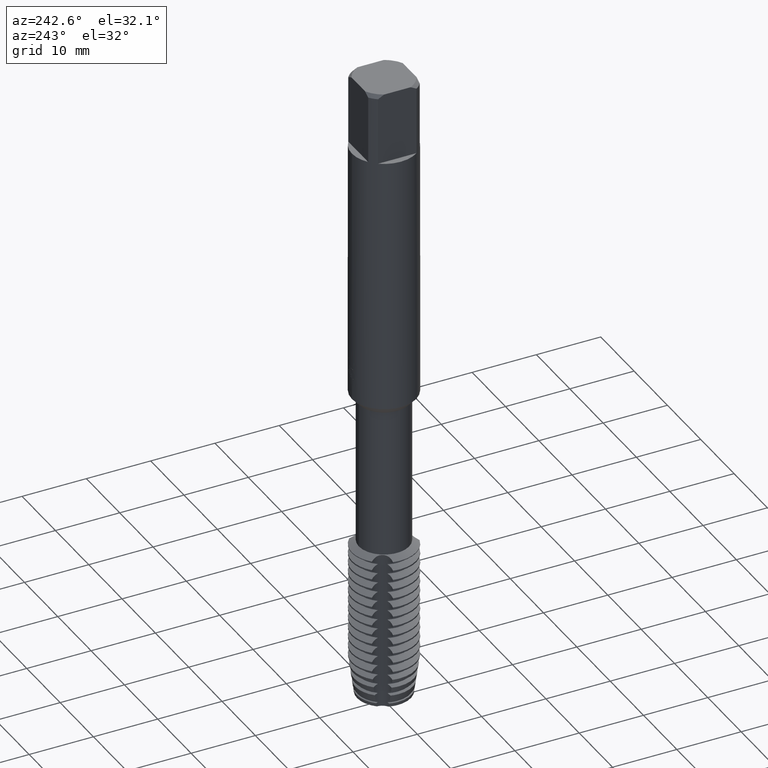
[diagram: clean part render]
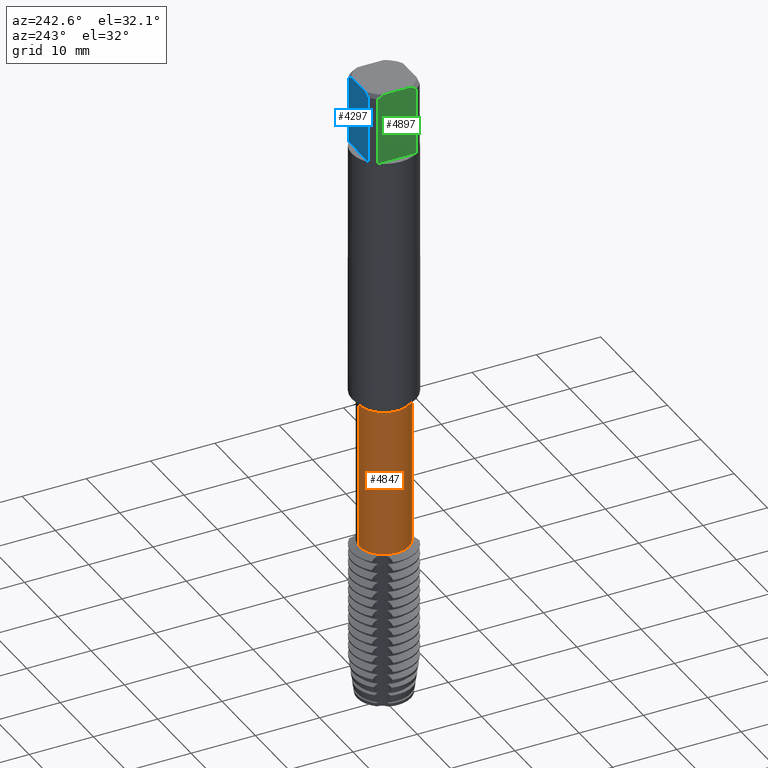
[diagram: same view with three faces highlighted in distinct colors, each labeled with its STEP entity id]
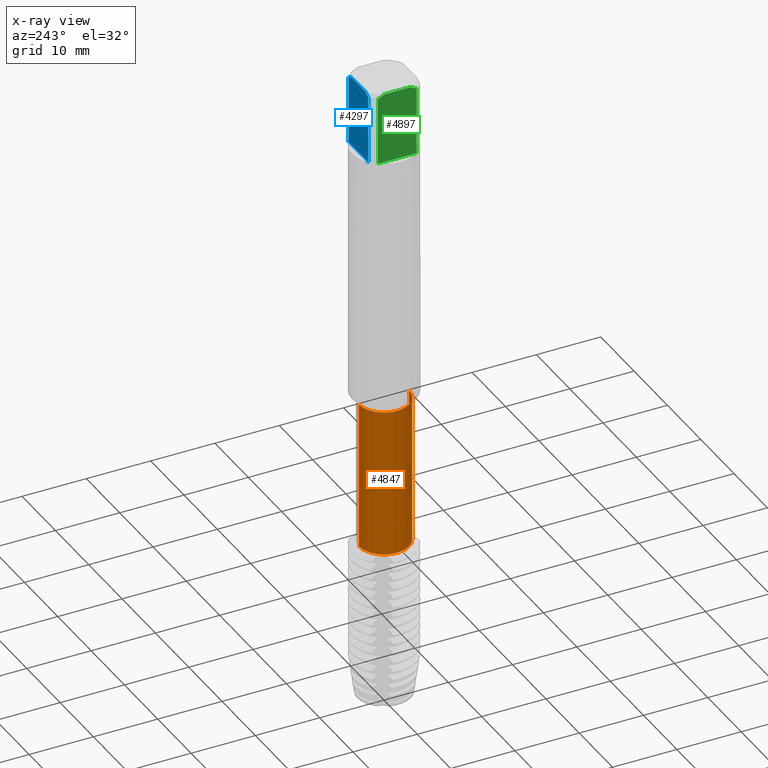
[diagram: x-ray of the same camera — body ghosted, the three highlighted faces saturated]
A machine part, auxiliary view with three faces highlighted in distinct colors.
The next image is the same camera in x-ray (body ghosted, the three faces saturated) — at least one of them is partly hidden behind the body in this view.
Their STEP definitions:

[orange] entity #4847 — the highlighted cylindrical surface (edge-blend (fillet) strip) has radius 3.9 mm, axis along (-0, -0, 1).
#2231=EDGE_CURVE('',#4285,#5823,#6323,.T.);
#2249=EDGE_CURVE('',#5247,#4629,#6342,.T.);
#2821=EDGE_CURVE('',#5823,#4629,#6973,.T.);
#4285=VERTEX_POINT('',#8551);
#4629=VERTEX_POINT('',#8923);
#4637=EDGE_CURVE('',#5247,#4285,#8931,.T.);
#4847=ADVANCED_FACE('',(#9159),#9160,.T.);
#5247=VERTEX_POINT('',#9603);
#5823=VERTEX_POINT('',#10234);
#6323=CIRCLE('',#10822,3.9);
#6342=CIRCLE('',#10847,3.9);
#6973=LINE('',#11903,#11904);
#8551=CARTESIAN_POINT('',(4.77596477990727E-016,-3.9,-52.23070893));
#8923=CARTESIAN_POINT('',(0.0,3.9,-75.3649147038914));
#8931=LINE('',#15416,#15417);
#9159=FACE_OUTER_BOUND('',#15819,.T.);
#9160=CYLINDRICAL_SURFACE('',#15820,3.9);
#9603=CARTESIAN_POINT('',(4.77596477990727E-016,-3.9,-75.3649147038914));
#10234=CARTESIAN_POINT('',(0.0,3.9,-52.23070893));
#10822=AXIS2_PLACEMENT_3D('',#18590,#18591,#18592);
#10847=AXIS2_PLACEMENT_3D('',#18608,#18609,#18610);
#11903=CARTESIAN_POINT('',(-4.77596477990727E-016,3.9,-63.7978118169457));
#11904=VECTOR('',#19316,1.0);
#15416=CARTESIAN_POINT('',(4.77596477990727E-016,-3.9,-63.7978118169457));
#15417=VECTOR('',#21503,1.0);
#15819=EDGE_LOOP('',(#21737,#21738,#21739,#21740));
#15820=AXIS2_PLACEMENT_3D('',#21741,#21742,#21743);
#18590=CARTESIAN_POINT('',(0.0,0.0,-52.23070893));
#18591=DIRECTION('',(0.0,0.0,-1.0));
#18592=DIRECTION('',(0.0,1.0,0.0));
#18608=CARTESIAN_POINT('',(0.0,0.0,-75.3649147038914));
#18609=DIRECTION('',(0.0,0.0,-1.0));
#18610=DIRECTION('',(0.0,1.0,0.0));
#19316=DIRECTION('',(0.0,0.0,-1.0));
#21503=DIRECTION('',(-0.0,-0.0,1.0));
#21737=ORIENTED_EDGE('',*,*,#2821,.T.);
#21738=ORIENTED_EDGE('',*,*,#2249,.F.);
#21739=ORIENTED_EDGE('',*,*,#4637,.T.);
#21740=ORIENTED_EDGE('',*,*,#2231,.T.);
#21741=CARTESIAN_POINT('',(0.0,0.0,-63.7978118169457));
#21742=DIRECTION('',(-0.0,-0.0,1.0));
#21743=DIRECTION('',(0.0,1.0,0.0));

[blue] entity #4297 — the highlighted planar face has unit normal (0, 1, 0).
#2079=EDGE_CURVE('',#4383,#5677,#6153,.T.);
#2991=VERTEX_POINT('',#7158);
#3085=EDGE_CURVE('',#5677,#3981,#7260,.T.);
#3101=EDGE_CURVE('',#4487,#4383,#7277,.T.);
#3671=VERTEX_POINT('',#7893);
#3981=VERTEX_POINT('',#8222);
#4297=ADVANCED_FACE('',(#8565),#8566,.T.);
#4383=VERTEX_POINT('',#8661);
#4487=VERTEX_POINT('',#8771);
#5677=VERTEX_POINT('',#10077);
#5859=EDGE_CURVE('',#3981,#2991,#10276,.T.);
#5965=EDGE_CURVE('',#2991,#3671,#10395,.T.);
#6051=EDGE_CURVE('',#3671,#4487,#10486,.T.);
#6153=LINE('',#10599,#10600);
#7158=CARTESIAN_POINT('',(2.06155281280883,4.0,0.0));
#7260=LINE('',#12410,#12411);
#7277=LINE('',#12434,#12435);
#7893=CARTESIAN_POINT('',(-2.06155281280883,4.0,0.0));
#8222=CARTESIAN_POINT('',(3.0,4.0,-0.5));
#8565=FACE_OUTER_BOUND('',#14791,.T.);
#8566=PLANE('',#14792);
#8661=CARTESIAN_POINT('',(-3.0,4.0,-11.0));
#8771=CARTESIAN_POINT('',(-3.0,4.0,-0.5));
#10077=CARTESIAN_POINT('',(3.0,4.0,-11.0));
#10276=(B_SPLINE_CURVE(2,(#17860,#17861,#17862),.UNSPECIFIED.,.F.,.F.)B_SPLINE_CURVE_WITH_KNOTS((3,3),(0.0,1.06374198224989),.UNSPECIFIED.)RATIONAL_B_SPLINE_CURVE((1.0,1.00491513263524,1.0))BOUNDED_CURVE()REPRESENTATION_ITEM('')GEOMETRIC_REPRESENTATION_ITEM()CURVE());
#10395=LINE('',#18060,#18061);
#10486=(B_SPLINE_CURVE(2,(#18233,#18234,#18235),.UNSPECIFIED.,.F.,.F.)B_SPLINE_CURVE_WITH_KNOTS((3,3),(0.0,1.06374198224989),.UNSPECIFIED.)RATIONAL_B_SPLINE_CURVE((1.0,1.00491513263524,1.0))BOUNDED_CURVE()REPRESENTATION_ITEM('')GEOMETRIC_REPRESENTATION_ITEM()CURVE());
#10599=CARTESIAN_POINT('',(0.0,4.0,-11.0));
#10600=VECTOR('',#18385,1.0);
#12410=CARTESIAN_POINT('',(3.0,4.0,-5.75));
#12411=VECTOR('',#19603,1.0);
#12434=CARTESIAN_POINT('',(-3.0,4.0,-5.75));
#12435=VECTOR('',#19616,1.0);
#14791=EDGE_LOOP('',(#21017,#21018,#21019,#21020,#21021,#21022));
#14792=AXIS2_PLACEMENT_3D('',#21023,#21024,#21025);
#17860=CARTESIAN_POINT('',(3.0,4.0,-0.5));
#17861=CARTESIAN_POINT('',(2.50608042779412,4.0,-0.203648256676475));
#17862=CARTESIAN_POINT('',(2.06155281280883,4.0,5.55111512312578E-017));
#18060=CARTESIAN_POINT('',(0.0,4.0,0.0));
#18061=VECTOR('',#23295,1.0);
#18233=CARTESIAN_POINT('',(-2.06155281280883,4.0,5.55111512312578E-017));
#18234=CARTESIAN_POINT('',(-2.50608042779412,4.0,-0.203648256676475));
#18235=CARTESIAN_POINT('',(-3.0,4.0,-0.5));
#18385=DIRECTION('',(1.0,0.0,0.0));
#19603=DIRECTION('',(-0.0,-0.0,1.0));
#19616=DIRECTION('',(0.0,0.0,-1.0));
#21017=ORIENTED_EDGE('',*,*,#3101,.F.);
#21018=ORIENTED_EDGE('',*,*,#6051,.F.);
#21019=ORIENTED_EDGE('',*,*,#5965,.F.);
#21020=ORIENTED_EDGE('',*,*,#5859,.F.);
#21021=ORIENTED_EDGE('',*,*,#3085,.F.);
#21022=ORIENTED_EDGE('',*,*,#2079,.F.);
#21023=CARTESIAN_POINT('',(0.0,4.0,-5.0));
#21024=DIRECTION('',(0.0,1.0,0.0));
#21025=DIRECTION('',(0.0,0.0,-1.0));
#23295=DIRECTION('',(-1.0,0.0,0.0));

[green] entity #4897 — the highlighted planar face has unit normal (-1, 0, 0).
#2251=EDGE_CURVE('',#2387,#5477,#6344,.T.);
#2313=VERTEX_POINT('',#6417);
#2387=VERTEX_POINT('',#6494);
#2541=EDGE_CURVE('',#5477,#4191,#6663,.T.);
#3203=EDGE_CURVE('',#4191,#5183,#7385,.T.);
#4157=EDGE_CURVE('',#2313,#2387,#8411,.T.);
#4191=VERTEX_POINT('',#8447);
#4897=ADVANCED_FACE('',(#9218),#9219,.T.);
#5183=VERTEX_POINT('',#9534);
#5477=VERTEX_POINT('',#9855);
#5607=EDGE_CURVE('',#5183,#5829,#9999,.T.);
#5829=VERTEX_POINT('',#10240);
#5835=EDGE_CURVE('',#5829,#2313,#10247,.T.);
#6344=(B_SPLINE_CURVE(2,(#10851,#10852,#10853),.UNSPECIFIED.,.F.,.F.)B_SPLINE_CURVE_WITH_KNOTS((3,3),(0.0,1.06374198224989),.UNSPECIFIED.)RATIONAL_B_SPLINE_CURVE((1.0,1.00491513263524,1.0))BOUNDED_CURVE()REPRESENTATION_ITEM('')GEOMETRIC_REPRESENTATION_ITEM()CURVE());
#6417=CARTESIAN_POINT('',(-4.0,2.06155281280883,0.0));
#6494=CARTESIAN_POINT('',(-4.0,-2.06155281280883,0.0));
#6663=LINE('',#11379,#11380);
#7385=LINE('',#12659,#12660);
#8411=LINE('',#14527,#14528);
#8447=CARTESIAN_POINT('',(-4.0,-3.0,-11.0));
#9218=FACE_OUTER_BOUND('',#15911,.T.);
#9219=PLANE('',#15912);
#9534=CARTESIAN_POINT('',(-4.0,3.0,-11.0));
#9855=CARTESIAN_POINT('',(-4.0,-3.0,-0.5));
#9999=LINE('',#17262,#17263);
#10240=CARTESIAN_POINT('',(-4.0,3.0,-0.5));
#10247=(B_SPLINE_CURVE(2,(#17780,#17781,#17782),.UNSPECIFIED.,.F.,.F.)B_SPLINE_CURVE_WITH_KNOTS((3,3),(0.0,1.06374198224989),.UNSPECIFIED.)RATIONAL_B_SPLINE_CURVE((1.0,1.00491513263524,1.0))BOUNDED_CURVE()REPRESENTATION_ITEM('')GEOMETRIC_REPRESENTATION_ITEM()CURVE());
#10851=CARTESIAN_POINT('',(-4.0,-2.06155281280883,5.55111512312578E-017));
#10852=CARTESIAN_POINT('',(-4.0,-2.50608042779412,-0.203648256676475));
#10853=CARTESIAN_POINT('',(-4.0,-3.0,-0.5));
#11379=CARTESIAN_POINT('',(-4.0,-3.0,-5.75));
#11380=VECTOR('',#18939,1.0);
#12659=CARTESIAN_POINT('',(-4.0,0.0,-11.0));
#12660=VECTOR('',#19709,1.0);
#14527=CARTESIAN_POINT('',(-4.0,1.125,0.0));
#14528=VECTOR('',#20835,1.0);
#15911=EDGE_LOOP('',(#21835,#21836,#21837,#21838,#21839,#21840));
#15912=AXIS2_PLACEMENT_3D('',#21841,#21842,#21843);
#17262=CARTESIAN_POINT('',(-4.0,3.0,-5.75));
#17263=VECTOR('',#22725,1.0);
#17780=CARTESIAN_POINT('',(-4.0,3.0,-0.5));
#17781=CARTESIAN_POINT('',(-4.0,2.50608042779412,-0.203648256676475));
#17782=CARTESIAN_POINT('',(-4.0,2.06155281280883,5.55111512312578E-017));
#18939=DIRECTION('',(0.0,0.0,-1.0));
#19709=DIRECTION('',(0.0,1.0,0.0));
#20835=DIRECTION('',(-0.0,-1.0,0.0));
#21835=ORIENTED_EDGE('',*,*,#5607,.F.);
#21836=ORIENTED_EDGE('',*,*,#3203,.F.);
#21837=ORIENTED_EDGE('',*,*,#2541,.F.);
#21838=ORIENTED_EDGE('',*,*,#2251,.F.);
#21839=ORIENTED_EDGE('',*,*,#4157,.F.);
#21840=ORIENTED_EDGE('',*,*,#5835,.F.);
#21841=CARTESIAN_POINT('',(-4.0,0.0,-5.0));
#21842=DIRECTION('',(-1.0,0.0,0.0));
#21843=DIRECTION('',(0.0,0.0,-1.0));
#22725=DIRECTION('',(-0.0,-0.0,1.0));